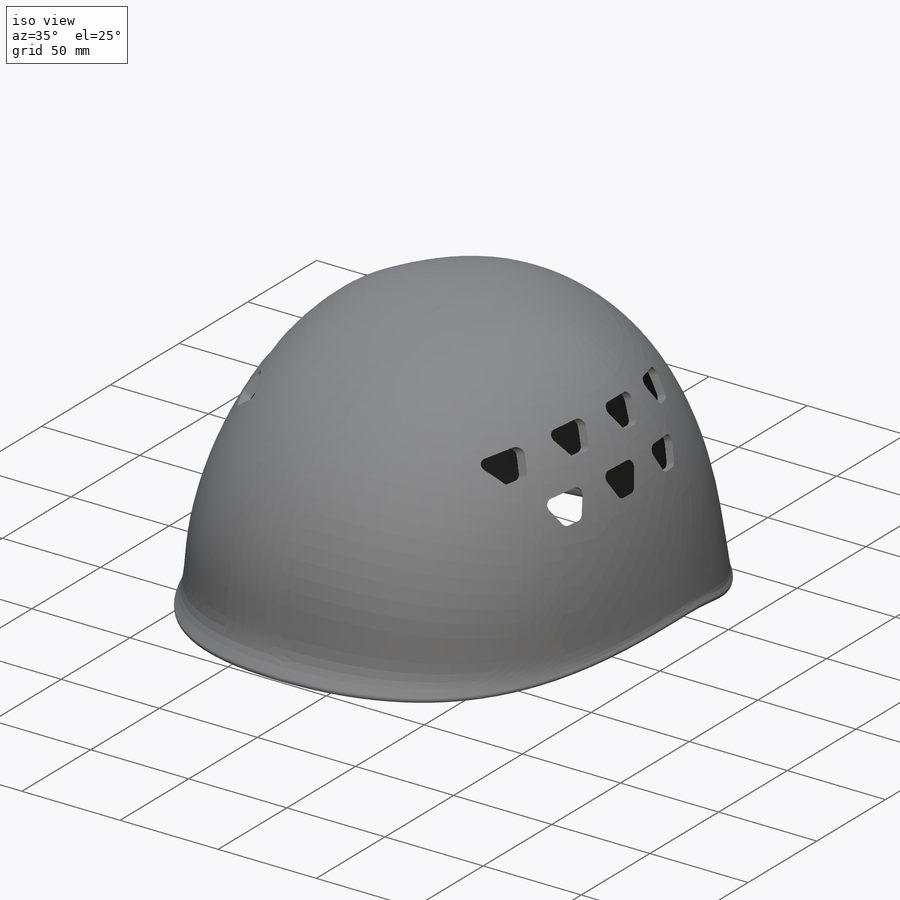
[diagram: iso view]
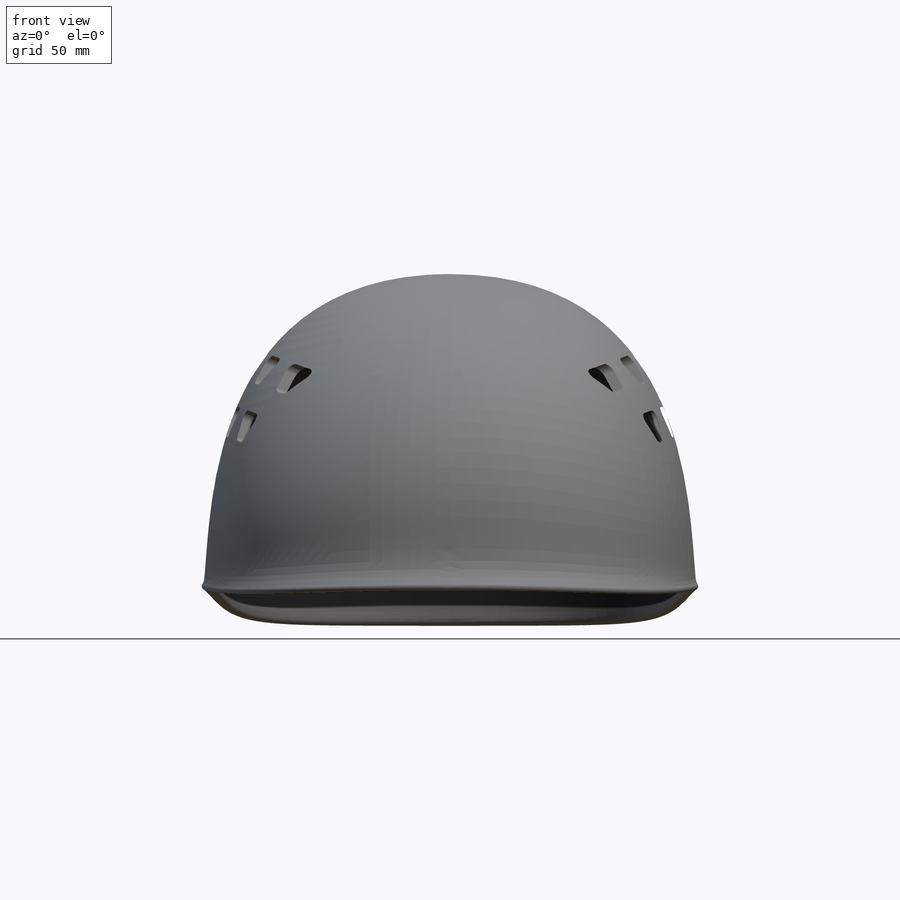
[diagram: front view]
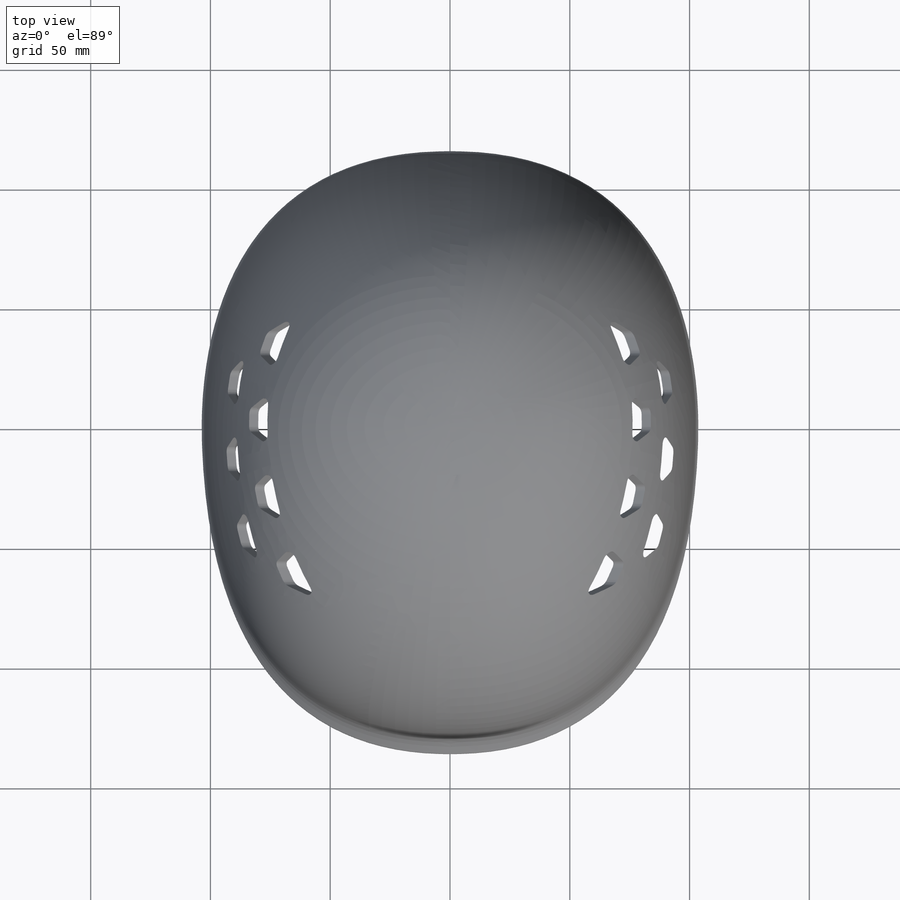
[diagram: top view]
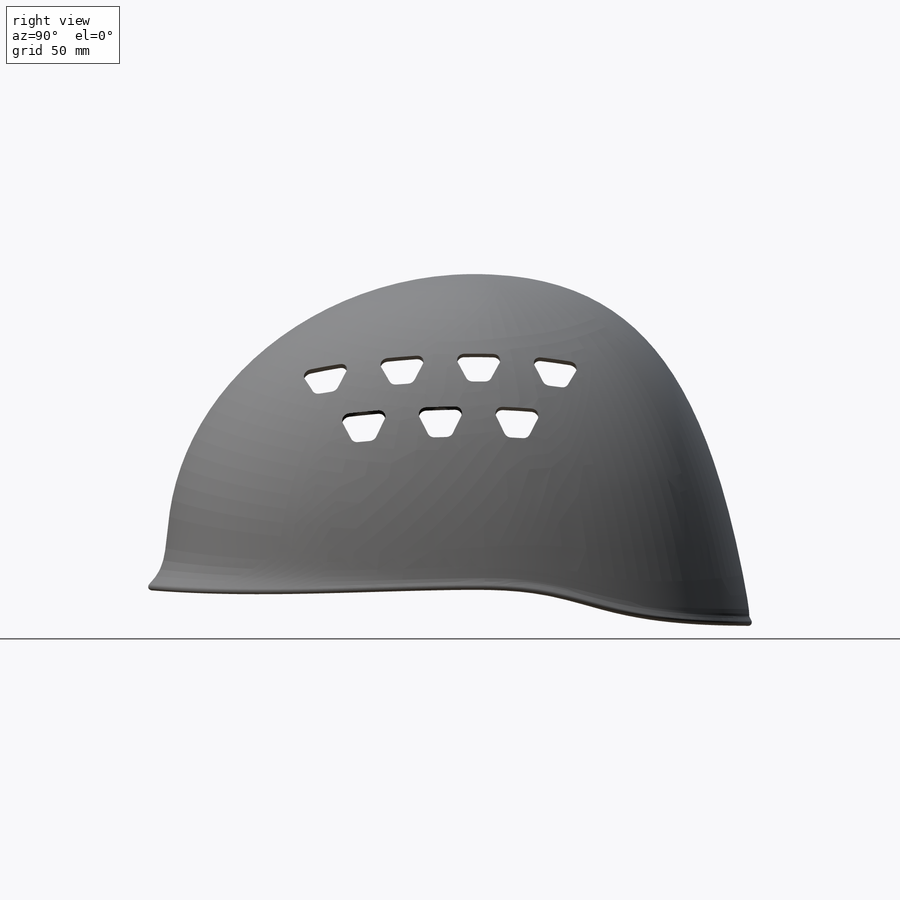
[diagram: right view]
SOLIDWORKS PART (.sldprt)
format: sldprt  version: not decoded by parser v0  size: 974,848 bytes
history: native  units: mm
features: plane x6, sketch x5, surface_op x4, mirror x2, fillet x2, material x1, delete_body x1, cut_extrude x1 (+13 scaffold rows collapsed)
feature tree (35):
  scaffold x13  (default folders/planes/origin — collapsed)
  material  "ABS"
  plane  "Plan de face"
  plane  "Plan de dessus"
  plane  "Plan de droite"
  plane  "Plan1"  Offset=10mm
  plane  "Plan2"
  sketch  "Esquisse1"  dims[c1.D3=~170.625559mm c1.D4=~88.434813mm c1.D5=~9.339816mm c1.D1=130.0mm c1.D2=205.0mm c2.D3=95.0deg c3.D3=6.0mm c3.D4=~9.021512mm c4.D4=85.0deg c4.D5=60.0deg c4.D6=2.0mm]
  sketch  "Esquisse2"  dims[c1.D2=~115.96762mm c1.D3=~285.349601mm c1.D4=~26.163524mm c1.D5=~77.862128mm c1.D6=~240.203416mm c1.D7=~314.637095mm c1.D8=~314.637095mm c2.D7=~15.757005mm c2.D9=~9.855823mm c2.D10=~185.675186mm c2.D12=~173.164444mm c2.D13=~173.164444mm c2.D1=135.0mm c2.D2=~113.117761deg c3.D2=15.0mm c3.D3=8.0mm c3.D4=50.0deg c3.D5=80.0deg c3.D6=102.5mm c4.D6=60.0deg c4.D7=85.0deg c4.D8=~43.465867mm c5.D6=6.0mm c5.D7=2.0mm c5.D8=250.0mm c5.D9=60.0deg c5.D10=85.0deg c5.D11=15.0mm c5.D12=5.0deg]
  sketch  "Esquisse9"  dims[c1.D2=~115.96762mm c1.D3=~285.349601mm c1.D4=~26.163524mm c1.D5=~77.862128mm c1.D6=~240.203416mm c1.D7=~314.637095mm c1.D8=~314.637095mm c2.D7=~15.757005mm c2.D9=~9.855823mm c2.D10=~185.675186mm c2.D12=~173.164444mm c2.D13=~173.164444mm c2.D1=135.0mm c2.D2=~113.117761deg c3.D2=15.0mm c3.D3=8.0mm c3.D4=50.0deg c3.D5=85.0deg c3.D6=102.5mm c4.D6=60.0deg c4.D7=85.0deg c4.D8=~43.465867mm c5.D6=6.0mm c5.D7=2.0mm c5.D8=250.0mm c5.D9=60.0deg c5.D10=85.0deg c5.D11=20.0mm c5.D12=5.0deg]
  plane  "Plan3"  Offset=120mm
  surface_op  "Surface-Extrusion1"
  surface_op  "Surface-Extrusion2"
  sketch  "Esquisse11"
  surface_op  "Surface-Extrusion3"
  surface_op  "Surface-Extrusion4"
  delete_body  "Corps-Effacer/suppr1"
  mirror  "Symétrie1"
  fillet  "Congé1"  Radius=3mm
  fillet  "Congé3"  Radius=1.5mm
  sketch  "Esquisse12"  dims[c1.D1=3.0mm c1.D4=2.0mm c1.D7=3.0mm c1.D2=~2.619454mm c2.D2=50.0deg c2.D3=13.5mm c2.D4=18.0mm c2.D6=32.0mm c2.D8=50.0deg c2.D9=13.5mm c2.D10=18.0mm c2.D11=25.0mm c2.D12=16.0mm c2.D14=32.0mm c2.D15=12.0mm c2.D5=4.0 c2.D13=3.0]
  cut_extrude  "Enlèv. mat.-Extru.1"  [1 undecoded]
  mirror  "Symétrie2"
decode coverage: 6 of 15 modeling features carry decoded parameters
note: ~ marks probable driven/reference dimensions
note: 1 parameter value undecoded
note: suppression state not decoded; provenance and decode notes live in map.json
